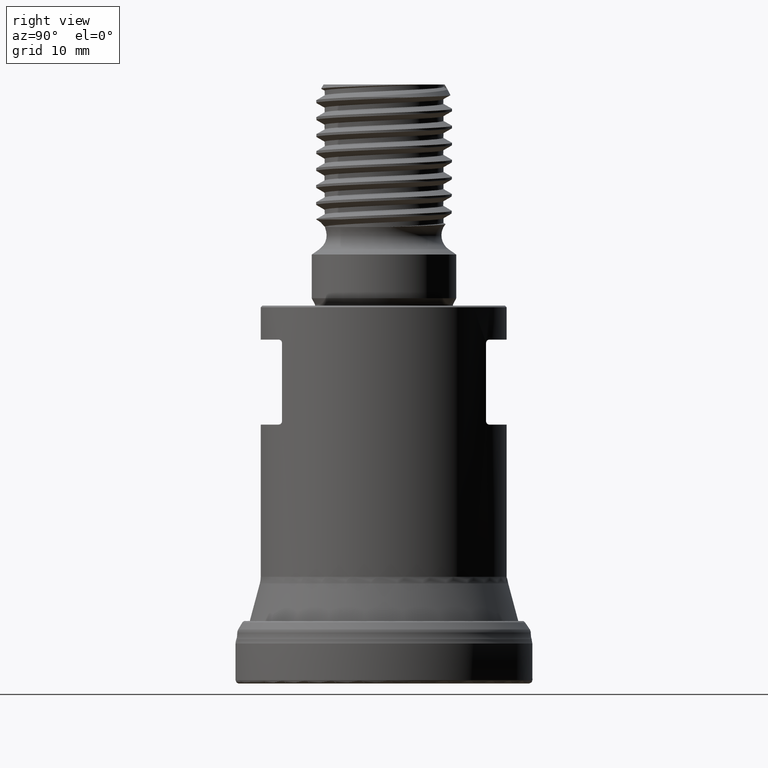
[diagram: clean part render]
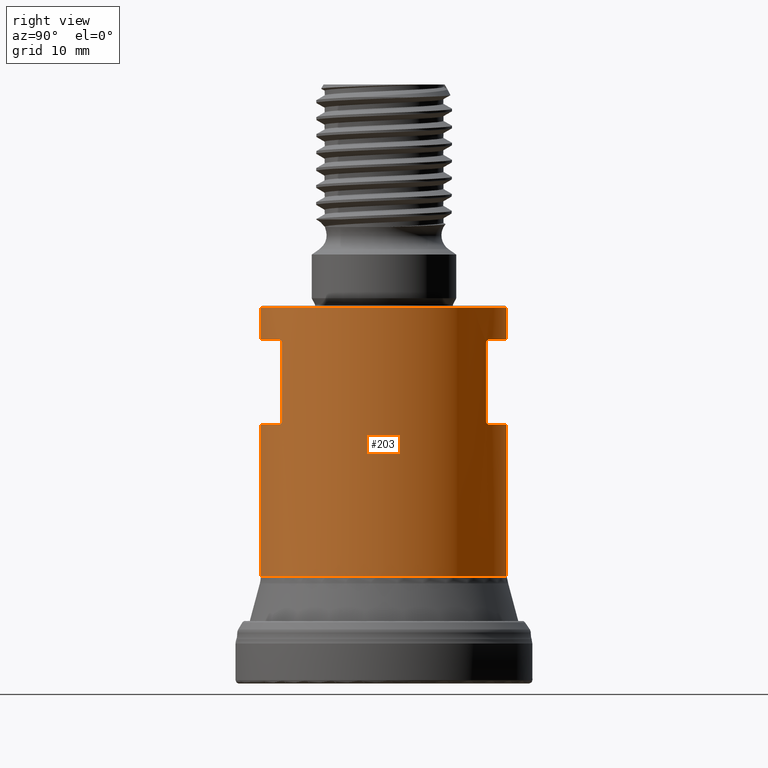
[diagram: same view with one face highlighted and labeled with its STEP entity id]
A machine part, right view. The second image highlights one B-rep face of the part: STEP entity #203.
In plain terms, the highlighted cylindrical surface (bore or boss wall) has radius 14.5 mm, axis along (0, 0, 1).
Its self-contained STEP definition (entity closure, byte-faithful):
#203=ADVANCED_FACE('',(#318,#319,#320,#321),#266,.T.);
#266=CYLINDRICAL_SURFACE('',#981,14.5);
#276=LINE('',#1501,#297);
#277=LINE('',#1549,#298);
#278=LINE('',#1595,#299);
#279=LINE('',#1643,#300);
#297=VECTOR('',#1073,1.);
#298=VECTOR('',#1076,1.);
#299=VECTOR('',#1079,1.);
#300=VECTOR('',#1082,1.);
#318=FACE_BOUND('',#412,.T.);
#319=FACE_BOUND('',#413,.T.);
#320=FACE_BOUND('',#414,.T.);
#321=FACE_BOUND('',#415,.T.);
#412=EDGE_LOOP('',(#521));
#413=EDGE_LOOP('',(#522,#523,#524,#525,#526,#527,#528,#529));
#414=EDGE_LOOP('',(#530,#531,#532,#533,#534,#535,#536,#537));
#415=EDGE_LOOP('',(#538));
#521=ORIENTED_EDGE('',*,*,#775,.T.);
#522=ORIENTED_EDGE('',*,*,#776,.T.);
#523=ORIENTED_EDGE('',*,*,#777,.T.);
#524=ORIENTED_EDGE('',*,*,#778,.T.);
#525=ORIENTED_EDGE('',*,*,#779,.T.);
#526=ORIENTED_EDGE('',*,*,#780,.T.);
#527=ORIENTED_EDGE('',*,*,#781,.T.);
#528=ORIENTED_EDGE('',*,*,#782,.T.);
#529=ORIENTED_EDGE('',*,*,#783,.T.);
#530=ORIENTED_EDGE('',*,*,#784,.T.);
#531=ORIENTED_EDGE('',*,*,#785,.T.);
#532=ORIENTED_EDGE('',*,*,#786,.T.);
#533=ORIENTED_EDGE('',*,*,#787,.T.);
#534=ORIENTED_EDGE('',*,*,#788,.T.);
#535=ORIENTED_EDGE('',*,*,#789,.T.);
#536=ORIENTED_EDGE('',*,*,#790,.T.);
#537=ORIENTED_EDGE('',*,*,#791,.T.);
#538=ORIENTED_EDGE('',*,*,#792,.T.);
#699=VERTEX_POINT('',#1500);
#700=VERTEX_POINT('',#1502);
#701=VERTEX_POINT('',#1503);
#702=VERTEX_POINT('',#1523);
#703=VERTEX_POINT('',#1525);
#704=VERTEX_POINT('',#1548);
#705=VERTEX_POINT('',#1550);
#706=VERTEX_POINT('',#1570);
#707=VERTEX_POINT('',#1572);
#708=VERTEX_POINT('',#1596);
#709=VERTEX_POINT('',#1597);
#710=VERTEX_POINT('',#1617);
#711=VERTEX_POINT('',#1619);
#712=VERTEX_POINT('',#1642);
#713=VERTEX_POINT('',#1644);
#714=VERTEX_POINT('',#1661);
#715=VERTEX_POINT('',#1663);
#716=VERTEX_POINT('',#1684);
#775=EDGE_CURVE('',#699,#699,#864,.T.);
#776=EDGE_CURVE('',#700,#701,#276,.T.);
#777=EDGE_CURVE('',#701,#702,#939,.T.);
#778=EDGE_CURVE('',#702,#703,#865,.T.);
#779=EDGE_CURVE('',#703,#704,#940,.T.);
#780=EDGE_CURVE('',#704,#705,#277,.T.);
#781=EDGE_CURVE('',#705,#706,#941,.T.);
#782=EDGE_CURVE('',#706,#707,#866,.T.);
#783=EDGE_CURVE('',#707,#700,#942,.T.);
#784=EDGE_CURVE('',#708,#709,#278,.T.);
#785=EDGE_CURVE('',#709,#710,#943,.T.);
#786=EDGE_CURVE('',#710,#711,#867,.T.);
#787=EDGE_CURVE('',#711,#712,#944,.T.);
#788=EDGE_CURVE('',#712,#713,#279,.T.);
#789=EDGE_CURVE('',#713,#714,#945,.T.);
#790=EDGE_CURVE('',#714,#715,#868,.T.);
#791=EDGE_CURVE('',#715,#708,#946,.T.);
#792=EDGE_CURVE('',#716,#716,#869,.T.);
#864=CIRCLE('',#975,14.5);
#865=CIRCLE('',#976,14.5);
#866=CIRCLE('',#977,14.5);
#867=CIRCLE('',#978,14.5);
#868=CIRCLE('',#979,14.5);
#869=CIRCLE('',#980,14.5);
#939=B_SPLINE_CURVE_WITH_KNOTS('',3,(#1504,#1505,#1506,#1507,#1508,#1509,
#1510,#1511,#1512,#1513,#1514,#1515,#1516,#1517,#1518,#1519,#1520,#1521,
#1522),.UNSPECIFIED.,.F.,.F.,(4,3,3,3,3,3,4),(0.,0.0742178285587744,0.157644329655401,
0.292865354831328,0.514948150457341,0.906958131603487,1.),.UNSPECIFIED.);
#940=B_SPLINE_CURVE_WITH_KNOTS('',3,(#1526,#1527,#1528,#1529,#1530,#1531,
#1532,#1533,#1534,#1535,#1536,#1537,#1538,#1539,#1540,#1541,#1542,#1543,
#1544,#1545,#1546,#1547),.UNSPECIFIED.,.F.,.F.,(4,3,3,3,3,3,3,4),(0.,0.0434556033441522,
0.448616497701336,0.640684900707792,0.801051445389478,0.902022694086625,
0.988047551290973,1.),.UNSPECIFIED.);
#941=B_SPLINE_CURVE_WITH_KNOTS('',3,(#1551,#1552,#1553,#1554,#1555,#1556,
#1557,#1558,#1559,#1560,#1561,#1562,#1563,#1564,#1565,#1566,#1567,#1568,
#1569),.UNSPECIFIED.,.F.,.F.,(4,3,3,3,3,3,4),(0.,0.074217828558773,0.157644329655401,
0.292865354831329,0.514948150457346,0.906958131603496,1.),.UNSPECIFIED.);
#942=B_SPLINE_CURVE_WITH_KNOTS('',3,(#1573,#1574,#1575,#1576,#1577,#1578,
#1579,#1580,#1581,#1582,#1583,#1584,#1585,#1586,#1587,#1588,#1589,#1590,
#1591,#1592,#1593,#1594),.UNSPECIFIED.,.F.,.F.,(4,3,3,3,3,3,3,4),(0.,0.0434556033441252,
0.448616497701322,0.640684900707777,0.801051445389464,0.902022694086611,
0.988047551290966,1.),.UNSPECIFIED.);
#943=B_SPLINE_CURVE_WITH_KNOTS('',3,(#1598,#1599,#1600,#1601,#1602,#1603,
#1604,#1605,#1606,#1607,#1608,#1609,#1610,#1611,#1612,#1613,#1614,#1615,
#1616),.UNSPECIFIED.,.F.,.F.,(4,3,3,3,3,3,4),(0.,0.0742178285587732,0.157644329655399,
0.292865354831328,0.514948150457342,0.906958131603487,1.),.UNSPECIFIED.);
#944=B_SPLINE_CURVE_WITH_KNOTS('',3,(#1620,#1621,#1622,#1623,#1624,#1625,
#1626,#1627,#1628,#1629,#1630,#1631,#1632,#1633,#1634,#1635,#1636,#1637,
#1638,#1639,#1640,#1641),.UNSPECIFIED.,.F.,.F.,(4,3,3,3,3,3,3,4),(0.,0.043455603344152,
0.448616497701336,0.640684900707792,0.801051445389478,0.902022694086624,
0.988047551290973,1.),.UNSPECIFIED.);
#945=B_SPLINE_CURVE_WITH_KNOTS('',3,(#1645,#1646,#1647,#1648,#1649,#1650,
#1651,#1652,#1653,#1654,#1655,#1656,#1657,#1658,#1659,#1660),
 .UNSPECIFIED.,.F.,.F.,(4,3,3,3,3,4),(0.,0.102583735862563,0.203723937083867,
0.364923242271843,0.641759227713241,1.),.UNSPECIFIED.);
#946=B_SPLINE_CURVE_WITH_KNOTS('',3,(#1664,#1665,#1666,#1667,#1668,#1669,
#1670,#1671,#1672,#1673,#1674,#1675,#1676,#1677,#1678,#1679,#1680,#1681,
#1682),.UNSPECIFIED.,.F.,.F.,(4,3,3,3,3,3,4),(0.,0.444864729300737,0.609407154865654,
0.77554656197924,0.88000660205286,0.969095596706916,1.),.UNSPECIFIED.);
#975=AXIS2_PLACEMENT_3D('',#1499,#1071,#1072);
#976=AXIS2_PLACEMENT_3D('',#1524,#1074,#1075);
#977=AXIS2_PLACEMENT_3D('',#1571,#1077,#1078);
#978=AXIS2_PLACEMENT_3D('',#1618,#1080,#1081);
#979=AXIS2_PLACEMENT_3D('',#1662,#1083,#1084);
#980=AXIS2_PLACEMENT_3D('',#1683,#1085,#1086);
#981=AXIS2_PLACEMENT_3D('',#1685,#1087,#1088);
#1071=DIRECTION('',(0.,1.17145536458252E-15,1.));
#1072=DIRECTION('',(0.,-1.,1.19636101791504E-15));
#1073=DIRECTION('',(1.17145536458252E-15,1.17145536458252E-15,1.));
#1074=DIRECTION('',(1.17145536458252E-15,1.17145536458252E-15,1.));
#1075=DIRECTION('',(0.,1.,-9.57088814332031E-16));
#1076=DIRECTION('',(-1.17145536458252E-15,-1.17145536458252E-15,-1.));
#1077=DIRECTION('',(-1.17145536458252E-15,-1.17145536458252E-15,-1.));
#1078=DIRECTION('',(0.,-1.,1.19636101791504E-15));
#1079=DIRECTION('',(1.17145536458252E-15,1.17145536458252E-15,1.));
#1080=DIRECTION('',(1.17145536458252E-15,1.17145536458252E-15,1.));
#1081=DIRECTION('',(0.,1.,-9.57088814332031E-16));
#1082=DIRECTION('',(-1.17145536458252E-15,-1.17145536458252E-15,-1.));
#1083=DIRECTION('',(-1.17145536458252E-15,-1.17145536458252E-15,-1.));
#1084=DIRECTION('',(0.,-1.,1.19636101791504E-15));
#1085=DIRECTION('',(-1.17145536458252E-15,-1.17145536458252E-15,-1.));
#1086=DIRECTION('',(0.,-1.,9.57088814332031E-16));
#1087=DIRECTION('',(0.,1.17145536458252E-15,1.));
#1088=DIRECTION('',(0.,-1.,1.17145536458252E-15));
#1499=CARTESIAN_POINT('',(0.,1.4707924822064E-14,12.5552584133716));
#1500=CARTESIAN_POINT('',(0.,-14.5,12.5552584133716));
#1501=CARTESIAN_POINT('',(8.13941029804988,12.,2.44999999999997));
#1502=CARTESIAN_POINT('',(8.1394102980499,12.,30.85));
#1503=CARTESIAN_POINT('',(8.13941029804991,12.,40.05));
#1504=CARTESIAN_POINT('',(8.13941029804991,12.,40.05));
#1505=CARTESIAN_POINT('',(8.13941029804991,12.,40.072761926607));
#1506=CARTESIAN_POINT('',(8.13644717399722,12.0020111473464,40.0957458142993));
#1507=CARTESIAN_POINT('',(8.13094272666901,12.0057390599509,40.1175152660629));
#1508=CARTESIAN_POINT('',(8.12473370927236,12.0099441459176,40.1420712108574));
#1509=CARTESIAN_POINT('',(8.11521283115816,12.0163853844229,40.1656009685708));
#1510=CARTESIAN_POINT('',(8.10357359360389,12.0242294976871,40.1871004361461));
#1511=CARTESIAN_POINT('',(8.08481372002567,12.0368724712911,40.2217528170973));
#1512=CARTESIAN_POINT('',(8.06019025602631,12.0533969675641,40.2521246156905));
#1513=CARTESIAN_POINT('',(8.03327292365512,12.0713100421649,40.2779537488578));
#1514=CARTESIAN_POINT('',(7.98921241932374,12.1006316365247,40.3202329991973));
#1515=CARTESIAN_POINT('',(7.9377537596222,12.1344988197545,40.3521308710705));
#1516=CARTESIAN_POINT('',(7.88470021137721,12.1688743348229,40.3764673443032));
#1517=CARTESIAN_POINT('',(7.79146837798988,12.229282967223,40.4192342108507));
#1518=CARTESIAN_POINT('',(7.68997559746779,12.29342903711,40.4405879810863));
#1519=CARTESIAN_POINT('',(7.58871335673044,12.355623399464,40.4475307753179));
#1520=CARTESIAN_POINT('',(7.56454450820136,12.3704676900125,40.449187852437));
#1521=CARTESIAN_POINT('',(7.54027998321402,12.3852729080489,40.45));
#1522=CARTESIAN_POINT('',(7.51598296964548,12.4,40.45));
#1523=CARTESIAN_POINT('',(7.51598296964548,12.4,40.45));
#1524=CARTESIAN_POINT('',(4.73853694973631E-14,4.73853694973631E-14,40.45));
#1525=CARTESIAN_POINT('',(-7.51598296964539,12.4,40.45));
#1526=CARTESIAN_POINT('',(-7.51598296964539,12.4,40.45));
#1527=CARTESIAN_POINT('',(-7.52735702976874,12.3931058675659,40.45));
#1528=CARTESIAN_POINT('',(-7.53872266574222,12.3861954343654,40.4498218218392));
#1529=CARTESIAN_POINT('',(-7.55007357119268,12.3792725581748,40.4494626054531));
#1530=CARTESIAN_POINT('',(-7.65506953109511,12.3152359018837,40.4461398512082));
#1531=CARTESIAN_POINT('',(-7.76056873589891,12.2489637151653,40.4278378023694));
#1532=CARTESIAN_POINT('',(-7.85835688142064,12.1859028030027,40.3878792539324));
#1533=CARTESIAN_POINT('',(-7.90506882074649,12.1557795453516,40.3687916510315));
#1534=CARTESIAN_POINT('',(-7.95057338698894,12.1260402451167,40.344415908192));
#1535=CARTESIAN_POINT('',(-7.99203515515349,12.0986517463224,40.3130384572747));
#1536=CARTESIAN_POINT('',(-8.02656173154824,12.0758444436478,40.2869094231277));
#1537=CARTESIAN_POINT('',(-8.05898187926331,12.0542019493076,40.2552992987112));
#1538=CARTESIAN_POINT('',(-8.08488342447345,12.0368043937199,40.2175975882249));
#1539=CARTESIAN_POINT('',(-8.10126088959277,12.0258039743439,40.193758915921));
#1540=CARTESIAN_POINT('',(-8.11525976641503,12.0163510740289,40.1669570117813));
#1541=CARTESIAN_POINT('',(-8.1248551759291,12.0098596315768,40.1382637690482));
#1542=CARTESIAN_POINT('',(-8.13302909308918,12.0043298506149,40.1138212281842));
#1543=CARTESIAN_POINT('',(-8.13810537663531,12.0008850746367,40.0874291869248));
#1544=CARTESIAN_POINT('',(-8.1391831156986,12.0001540910576,40.0611017612126));
#1545=CARTESIAN_POINT('',(-8.13933446413745,12.0000514379876,40.0574045631463));
#1546=CARTESIAN_POINT('',(-8.13941029804982,12.,40.0537017181881));
#1547=CARTESIAN_POINT('',(-8.13941029804982,12.,40.05));
#1548=CARTESIAN_POINT('',(-8.13941029804982,12.,40.05));
#1549=CARTESIAN_POINT('',(-8.13941029804987,12.,2.44999999999999));
#1550=CARTESIAN_POINT('',(-8.13941029804983,12.,30.85));
#1551=CARTESIAN_POINT('',(-8.13941029804983,12.,30.85));
#1552=CARTESIAN_POINT('',(-8.13941029804983,12.,30.827238073393));
#1553=CARTESIAN_POINT('',(-8.13644717399715,12.0020111473464,30.8042541857006));
#1554=CARTESIAN_POINT('',(-8.13094272666893,12.0057390599509,30.782484733937));
#1555=CARTESIAN_POINT('',(-8.12473370927228,12.0099441459176,30.7579287891426));
#1556=CARTESIAN_POINT('',(-8.11521283115808,12.0163853844229,30.7343990314292));
#1557=CARTESIAN_POINT('',(-8.10357359360381,12.0242294976871,30.7128995638539));
#1558=CARTESIAN_POINT('',(-8.08481372002559,12.0368724712911,30.6782471829027));
#1559=CARTESIAN_POINT('',(-8.06019025602623,12.0533969675641,30.6478753843094));
#1560=CARTESIAN_POINT('',(-8.03327292365504,12.0713100421649,30.6220462511422));
#1561=CARTESIAN_POINT('',(-7.98921241932366,12.1006316365247,30.5797670008027));
#1562=CARTESIAN_POINT('',(-7.93775375962212,12.1344988197545,30.5478691289295));
#1563=CARTESIAN_POINT('',(-7.88470021137712,12.1688743348228,30.5235326556968));
#1564=CARTESIAN_POINT('',(-7.79146837798979,12.229282967223,30.4807657891493));
#1565=CARTESIAN_POINT('',(-7.6899755974677,12.29342903711,30.4594120189137));
#1566=CARTESIAN_POINT('',(-7.58871335673035,12.355623399464,30.4524692246821));
#1567=CARTESIAN_POINT('',(-7.56454450820128,12.3704676900125,30.450812147563));
#1568=CARTESIAN_POINT('',(-7.54027998321394,12.3852729080489,30.4499999999999));
#1569=CARTESIAN_POINT('',(-7.5159829696454,12.4,30.4499999999999));
#1570=CARTESIAN_POINT('',(-7.5159829696454,12.4,30.4499999999999));
#1571=CARTESIAN_POINT('',(3.56708158515379E-14,3.56708158515379E-14,30.45));
#1572=CARTESIAN_POINT('',(7.51598296964547,12.4,30.45));
#1573=CARTESIAN_POINT('',(7.51598296964547,12.4,30.45));
#1574=CARTESIAN_POINT('',(7.52735702976882,12.3931058675659,30.45));
#1575=CARTESIAN_POINT('',(7.53872266574229,12.3861954343654,30.4501781781608));
#1576=CARTESIAN_POINT('',(7.55007357119274,12.3792725581748,30.4505373945469));
#1577=CARTESIAN_POINT('',(7.65506953109518,12.3152359018837,30.4538601487918));
#1578=CARTESIAN_POINT('',(7.76056873589898,12.2489637151653,30.4721621976306));
#1579=CARTESIAN_POINT('',(7.85835688142072,12.1859028030027,30.5121207460675));
#1580=CARTESIAN_POINT('',(7.90506882074657,12.1557795453516,30.5312083489685));
#1581=CARTESIAN_POINT('',(7.95057338698902,12.1260402451167,30.555584091808));
#1582=CARTESIAN_POINT('',(7.99203515515357,12.0986517463224,30.5869615427253));
#1583=CARTESIAN_POINT('',(8.02656173154831,12.0758444436478,30.6130905768723));
#1584=CARTESIAN_POINT('',(8.05898187926339,12.0542019493076,30.6447007012887));
#1585=CARTESIAN_POINT('',(8.08488342447353,12.0368043937199,30.682402411775));
#1586=CARTESIAN_POINT('',(8.10126088959285,12.0258039743439,30.7062410840789));
#1587=CARTESIAN_POINT('',(8.11525976641511,12.0163510740289,30.7330429882186));
#1588=CARTESIAN_POINT('',(8.12485517592918,12.0098596315768,30.7617362309518));
#1589=CARTESIAN_POINT('',(8.13302909308926,12.0043298506149,30.7861787718158));
#1590=CARTESIAN_POINT('',(8.1381053766354,12.0008850746367,30.8125708130752));
#1591=CARTESIAN_POINT('',(8.13918311569868,12.0001540910576,30.8388982387874));
#1592=CARTESIAN_POINT('',(8.13933446413754,12.0000514379876,30.8425954368537));
#1593=CARTESIAN_POINT('',(8.1394102980499,12.,30.8462982818119));
#1594=CARTESIAN_POINT('',(8.1394102980499,12.,30.85));
#1595=CARTESIAN_POINT('',(-8.13941029804987,-12.,2.45000000000001));
#1596=CARTESIAN_POINT('',(-8.13941029804983,-12.,30.85));
#1597=CARTESIAN_POINT('',(-8.13941029804982,-12.,40.05));
#1598=CARTESIAN_POINT('',(-8.13941029804982,-12.,40.05));
#1599=CARTESIAN_POINT('',(-8.13941029804982,-12.,40.072761926607));
#1600=CARTESIAN_POINT('',(-8.13644717399713,-12.0020111473463,40.0957458142994));
#1601=CARTESIAN_POINT('',(-8.13094272666892,-12.0057390599508,40.117515266063));
#1602=CARTESIAN_POINT('',(-8.12473370927226,-12.0099441459175,40.1420712108574));
#1603=CARTESIAN_POINT('',(-8.11521283115806,-12.0163853844228,40.1656009685708));
#1604=CARTESIAN_POINT('',(-8.10357359360379,-12.024229497687,40.1871004361461));
#1605=CARTESIAN_POINT('',(-8.08481372002557,-12.036872471291,40.2217528170973));
#1606=CARTESIAN_POINT('',(-8.06019025602621,-12.053396967564,40.2521246156906));
#1607=CARTESIAN_POINT('',(-8.03327292365502,-12.0713100421648,40.2779537488579));
#1608=CARTESIAN_POINT('',(-7.98921241932365,-12.1006316365246,40.3202329991973));
#1609=CARTESIAN_POINT('',(-7.9377537596221,-12.1344988197544,40.3521308710706));
#1610=CARTESIAN_POINT('',(-7.88470021137711,-12.1688743348228,40.3764673443032));
#1611=CARTESIAN_POINT('',(-7.79146837798978,-12.2292829672229,40.4192342108507));
#1612=CARTESIAN_POINT('',(-7.68997559746769,-12.2934290371099,40.4405879810863));
#1613=CARTESIAN_POINT('',(-7.58871335673034,-12.3556233994639,40.4475307753179));
#1614=CARTESIAN_POINT('',(-7.56454450820127,-12.3704676900124,40.449187852437));
#1615=CARTESIAN_POINT('',(-7.54027998321393,-12.3852729080488,40.45));
#1616=CARTESIAN_POINT('',(-7.51598296964539,-12.4,40.45));
#1617=CARTESIAN_POINT('',(-7.51598296964539,-12.4,40.45));
#1618=CARTESIAN_POINT('',(4.73853694973631E-14,4.73853694973631E-14,40.45));
#1619=CARTESIAN_POINT('',(7.51598296964548,-12.4,40.45));
#1620=CARTESIAN_POINT('',(7.51598296964548,-12.4,40.45));
#1621=CARTESIAN_POINT('',(7.52735702976883,-12.3931058675659,40.45));
#1622=CARTESIAN_POINT('',(7.53872266574231,-12.3861954343653,40.4498218218392));
#1623=CARTESIAN_POINT('',(7.55007357119277,-12.3792725581747,40.4494626054531));
#1624=CARTESIAN_POINT('',(7.6550695310952,-12.3152359018836,40.4461398512082));
#1625=CARTESIAN_POINT('',(7.76056873589901,-12.2489637151652,40.4278378023694));
#1626=CARTESIAN_POINT('',(7.85835688142074,-12.1859028030026,40.3878792539324));
#1627=CARTESIAN_POINT('',(7.90506882074658,-12.1557795453516,40.3687916510315));
#1628=CARTESIAN_POINT('',(7.95057338698904,-12.1260402451166,40.344415908192));
#1629=CARTESIAN_POINT('',(7.99203515515359,-12.0986517463224,40.3130384572747));
#1630=CARTESIAN_POINT('',(8.02656173154833,-12.0758444436477,40.2869094231277));
#1631=CARTESIAN_POINT('',(8.0589818792634,-12.0542019493075,40.2552992987112));
#1632=CARTESIAN_POINT('',(8.08488342447355,-12.0368043937198,40.2175975882249));
#1633=CARTESIAN_POINT('',(8.10126088959287,-12.0258039743438,40.1937589159211));
#1634=CARTESIAN_POINT('',(8.11525976641512,-12.0163510740288,40.1669570117813));
#1635=CARTESIAN_POINT('',(8.1248551759292,-12.0098596315767,40.1382637690482));
#1636=CARTESIAN_POINT('',(8.13302909308927,-12.0043298506148,40.1138212281842));
#1637=CARTESIAN_POINT('',(8.13810537663541,-12.0008850746366,40.0874291869248));
#1638=CARTESIAN_POINT('',(8.13918311569869,-12.0001540910575,40.0611017612126));
#1639=CARTESIAN_POINT('',(8.13933446413755,-12.0000514379875,40.0574045631463));
#1640=CARTESIAN_POINT('',(8.13941029804991,-12.,40.0537017181881));
#1641=CARTESIAN_POINT('',(8.13941029804991,-12.,40.05));
#1642=CARTESIAN_POINT('',(8.13941029804991,-12.,40.05));
#1643=CARTESIAN_POINT('',(8.13941029804988,-12.,2.45));
#1644=CARTESIAN_POINT('',(8.1394102980499,-12.,30.85));
#1645=CARTESIAN_POINT('',(8.1394102980499,-12.,30.85));
#1646=CARTESIAN_POINT('',(8.1394102980499,-12.,30.8187150003752));
#1647=CARTESIAN_POINT('',(8.13367610909971,-12.0038935561958,30.7869349939206));
#1648=CARTESIAN_POINT('',(8.12361423121539,-12.0106990563578,30.7581045415739));
#1649=CARTESIAN_POINT('',(8.11363413444439,-12.0174492426523,30.7295084179001));
#1650=CARTESIAN_POINT('',(8.09930708379325,-12.0271204817592,30.702872640337));
#1651=CARTESIAN_POINT('',(8.0826544398338,-12.0383012591576,30.6791959576795));
#1652=CARTESIAN_POINT('',(8.05622421873656,-12.0560468147221,30.6416175431639));
#1653=CARTESIAN_POINT('',(8.02335684119292,-12.0779757177134,30.610197123009));
#1654=CARTESIAN_POINT('',(7.98842060825749,-12.1010386407765,30.5842518002106));
#1655=CARTESIAN_POINT('',(7.92864961638412,-12.1404960656664,30.5398629938674));
#1656=CARTESIAN_POINT('',(7.86093663143181,-12.1845123353712,30.5095235381676));
#1657=CARTESIAN_POINT('',(7.79208409837756,-12.2283860506533,30.4886848295606));
#1658=CARTESIAN_POINT('',(7.70291157054343,-12.2852079266776,30.4616961300771));
#1659=CARTESIAN_POINT('',(7.60930596947211,-12.3434343485989,30.45));
#1660=CARTESIAN_POINT('',(7.51598296964547,-12.4,30.45));
#1661=CARTESIAN_POINT('',(7.51598296964547,-12.4,30.45));
#1662=CARTESIAN_POINT('',(3.56708158515379E-14,3.56708158515379E-14,30.45));
#1663=CARTESIAN_POINT('',(-7.5159829696454,-12.4,30.45));
#1664=CARTESIAN_POINT('',(-7.5159829696454,-12.4,30.45));
#1665=CARTESIAN_POINT('',(-7.63132791214499,-12.3300862400434,30.45));
#1666=CARTESIAN_POINT('',(-7.74781160859115,-12.2571503756533,30.4675657969923));
#1667=CARTESIAN_POINT('',(-7.8551915638228,-12.1879434481641,30.5108362949494));
#1668=CARTESIAN_POINT('',(-7.8953707927741,-12.1620477306756,30.5270271681948));
#1669=CARTESIAN_POINT('',(-7.93459349904627,-12.1364801476378,30.5470782380953));
#1670=CARTESIAN_POINT('',(-7.97123768788142,-12.1123643325033,30.5720328746349));
#1671=CARTESIAN_POINT('',(-8.00807970526934,-12.0881183249165,30.5971222321163));
#1672=CARTESIAN_POINT('',(-8.0430131760895,-12.0648723938928,30.6276684361029));
#1673=CARTESIAN_POINT('',(-8.07187218348568,-12.0455335894044,30.6646528560795));
#1674=CARTESIAN_POINT('',(-8.09008422017937,-12.0333294615174,30.6879925920747));
#1675=CARTESIAN_POINT('',(-8.10612699866334,-12.0225166755528,30.7143794790308));
#1676=CARTESIAN_POINT('',(-8.11790733612336,-12.0145570239653,30.7430714620622));
#1677=CARTESIAN_POINT('',(-8.12794603627542,-12.0077741490372,30.7675215438529));
#1678=CARTESIAN_POINT('',(-8.13501808404771,-12.002978497456,30.7942302092602));
#1679=CARTESIAN_POINT('',(-8.13788973012605,-12.0010312365358,30.8212958926308));
#1680=CARTESIAN_POINT('',(-8.13889871139546,-12.00034704714,30.8308056883435));
#1681=CARTESIAN_POINT('',(-8.13941029804983,-12.,30.8404123844033));
#1682=CARTESIAN_POINT('',(-8.13941029804983,-12.,30.85));
#1683=CARTESIAN_POINT('',(5.18368998827767E-14,5.18368998827767E-14,44.25));
#1684=CARTESIAN_POINT('',(5.18368998827767E-14,-14.5,44.25));
#1685=CARTESIAN_POINT('',(0.,0.,0.));